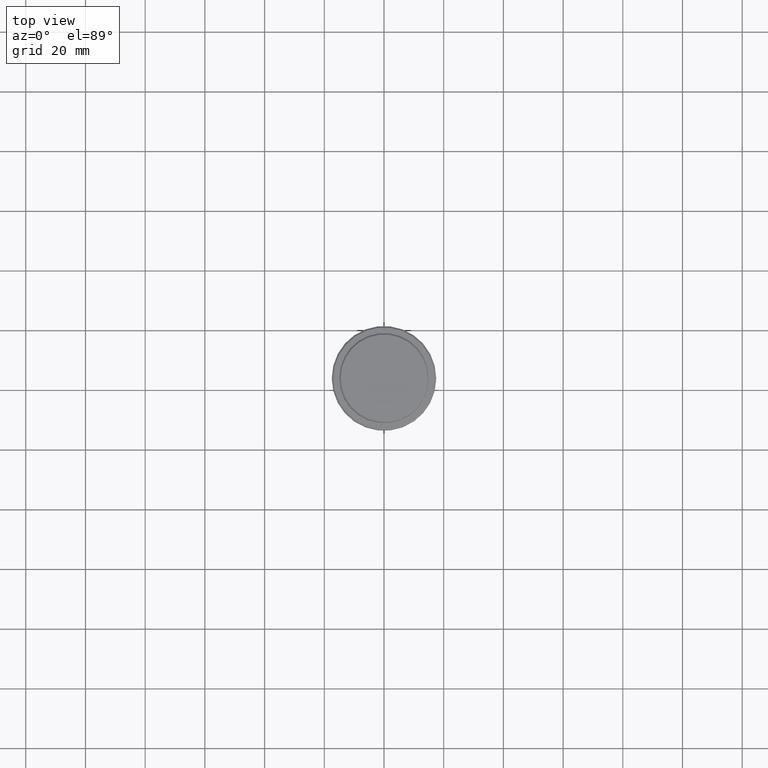
[diagram: clean part render]
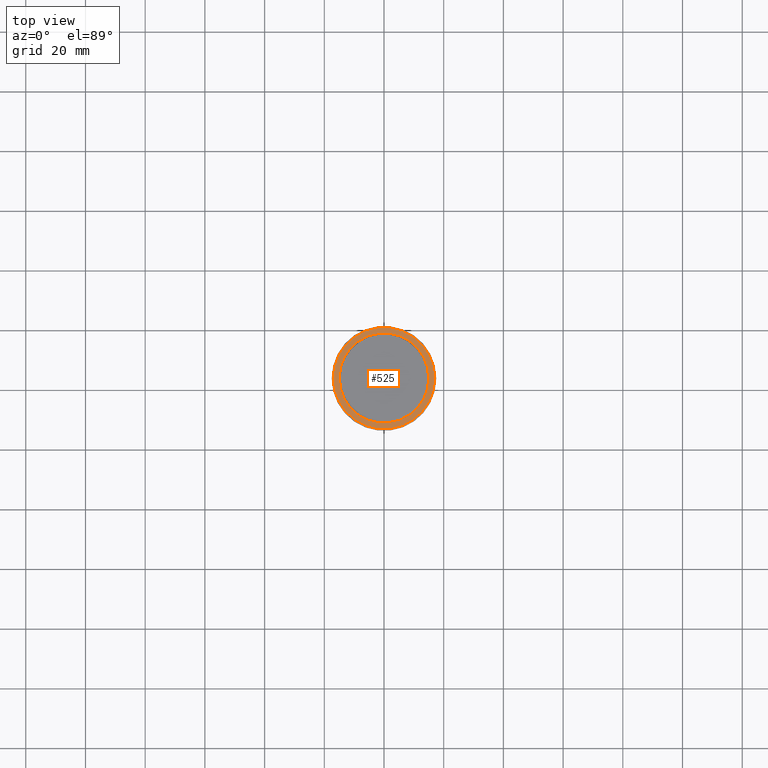
[diagram: same view with one face highlighted and labeled with its STEP entity id]
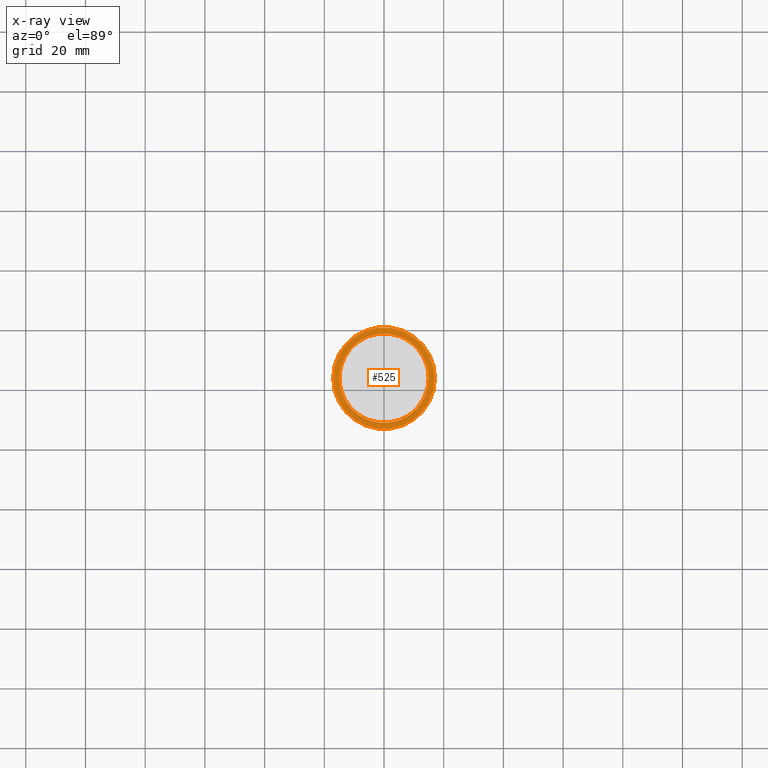
[diagram: x-ray of the same camera — body ghosted, the highlighted face saturated]
A machine part, top view. The second image highlights one B-rep face of the part: STEP entity #525.
The next image is the same camera in x-ray: the body ghosted, the highlighted face saturated — about 0% of this face is hidden behind the body in this view.
In plain terms, the highlighted planar face has unit normal (0, -0, 1).
Its self-contained STEP definition (entity closure, byte-faithful):
#31 = DIRECTION ( 'NONE',  ( -0.000000000000000000, -0.000000000000000000, 1.000000000000000000 ) ) ;
#38 = CIRCLE ( 'NONE', #278, 14.99999999999999467 ) ;
#62 = DIRECTION ( 'NONE',  ( 0.000000000000000000, 0.000000000000000000, -1.000000000000000000 ) ) ;
#76 = VERTEX_POINT ( 'NONE', #1095 ) ;
#124 = EDGE_CURVE ( 'NONE', #1311, #1042, #1062, .T. ) ;
#184 = EDGE_CURVE ( 'NONE', #588, #76, #38, .T. ) ;
#192 = CARTESIAN_POINT ( 'NONE',  ( -14.99999999999999467, 1.836970198721029194E-15, -9.000000000000001776 ) ) ;
#227 = DIRECTION ( 'NONE',  ( 0.000000000000000000, -0.000000000000000000, 1.000000000000000000 ) ) ;
#232 = PLANE ( 'NONE',  #901 ) ;
#247 = DIRECTION ( 'NONE',  ( 1.000000000000000000, 0.000000000000000000, 0.000000000000000000 ) ) ;
#265 = EDGE_CURVE ( 'NONE', #1042, #1311, #594, .T. ) ;
#278 = AXIS2_PLACEMENT_3D ( 'NONE', #1038, #62, #1250 ) ;
#346 = FACE_OUTER_BOUND ( 'NONE', #1395, .T. ) ;
#352 = CARTESIAN_POINT ( 'NONE',  ( 0.000000000000000000, 14.49999999999999467, -9.000000000000001776 ) ) ;
#368 = DIRECTION ( 'NONE',  ( -0.000000000000000000, -0.000000000000000000, 1.000000000000000000 ) ) ;
#412 = ORIENTED_EDGE ( 'NONE', *, *, #949, .T. ) ;
#439 = ORIENTED_EDGE ( 'NONE', *, *, #124, .T. ) ;
#468 = DIRECTION ( 'NONE',  ( 1.000000000000000000, 0.000000000000000000, 0.000000000000000000 ) ) ;
#501 = AXIS2_PLACEMENT_3D ( 'NONE', #1003, #1314, #665 ) ;
#525 = ADVANCED_FACE ( 'NONE', ( #346, #1213 ), #232, .T. ) ;
#588 = VERTEX_POINT ( 'NONE', #192 ) ;
#594 = CIRCLE ( 'NONE', #1177, 17.00000000000004263 ) ;
#665 = DIRECTION ( 'NONE',  ( 1.000000000000000000, 0.000000000000000000, 0.000000000000000000 ) ) ;
#668 = CARTESIAN_POINT ( 'NONE',  ( 0.000000000000000000, 0.000000000000000000, -9.000000000000001776 ) ) ;
#671 = DIRECTION ( 'NONE',  ( 1.000000000000000000, 0.000000000000000000, 0.000000000000000000 ) ) ;
#901 = AXIS2_PLACEMENT_3D ( 'NONE', #352, #227, #671 ) ;
#924 = CARTESIAN_POINT ( 'NONE',  ( 0.000000000000000000, 0.000000000000000000, -9.000000000000001776 ) ) ;
#931 = CIRCLE ( 'NONE', #501, 14.99999999999999467 ) ;
#949 = EDGE_CURVE ( 'NONE', #76, #588, #931, .T. ) ;
#1003 = CARTESIAN_POINT ( 'NONE',  ( 0.000000000000000000, 0.000000000000000000, -9.000000000000001776 ) ) ;
#1038 = CARTESIAN_POINT ( 'NONE',  ( 0.000000000000000000, 0.000000000000000000, -9.000000000000001776 ) ) ;
#1042 = VERTEX_POINT ( 'NONE', #1296 ) ;
#1062 = CIRCLE ( 'NONE', #1174, 17.00000000000004263 ) ;
#1095 = CARTESIAN_POINT ( 'NONE',  ( 14.99999999999999467, 0.000000000000000000, -9.000000000000001776 ) ) ;
#1109 = EDGE_LOOP ( 'NONE', ( #412, #1401 ) ) ;
#1151 = CARTESIAN_POINT ( 'NONE',  ( -17.00000000000004263, 0.000000000000000000, -9.000000000000001776 ) ) ;
#1174 = AXIS2_PLACEMENT_3D ( 'NONE', #668, #31, #468 ) ;
#1177 = AXIS2_PLACEMENT_3D ( 'NONE', #924, #368, #247 ) ;
#1213 = FACE_BOUND ( 'NONE', #1109, .T. ) ;
#1250 = DIRECTION ( 'NONE',  ( 1.000000000000000000, 0.000000000000000000, 0.000000000000000000 ) ) ;
#1287 = ORIENTED_EDGE ( 'NONE', *, *, #265, .T. ) ;
#1296 = CARTESIAN_POINT ( 'NONE',  ( 17.00000000000004263, 2.112515728529187222E-15, -9.000000000000001776 ) ) ;
#1311 = VERTEX_POINT ( 'NONE', #1151 ) ;
#1314 = DIRECTION ( 'NONE',  ( 0.000000000000000000, 0.000000000000000000, -1.000000000000000000 ) ) ;
#1395 = EDGE_LOOP ( 'NONE', ( #439, #1287 ) ) ;
#1401 = ORIENTED_EDGE ( 'NONE', *, *, #184, .T. ) ;